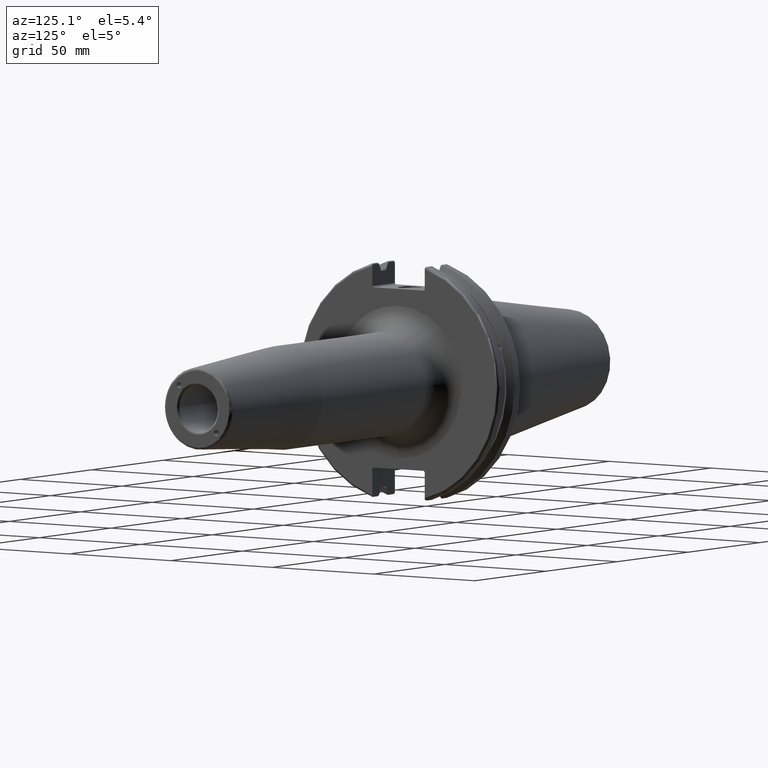
[diagram: clean part render]
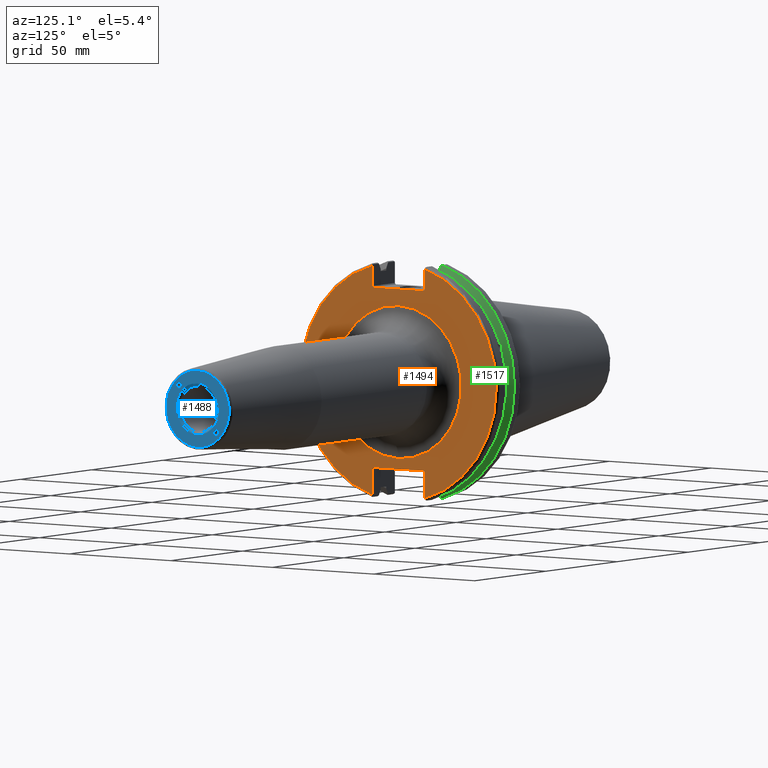
[diagram: same view with three faces highlighted in distinct colors, each labeled with its STEP entity id]
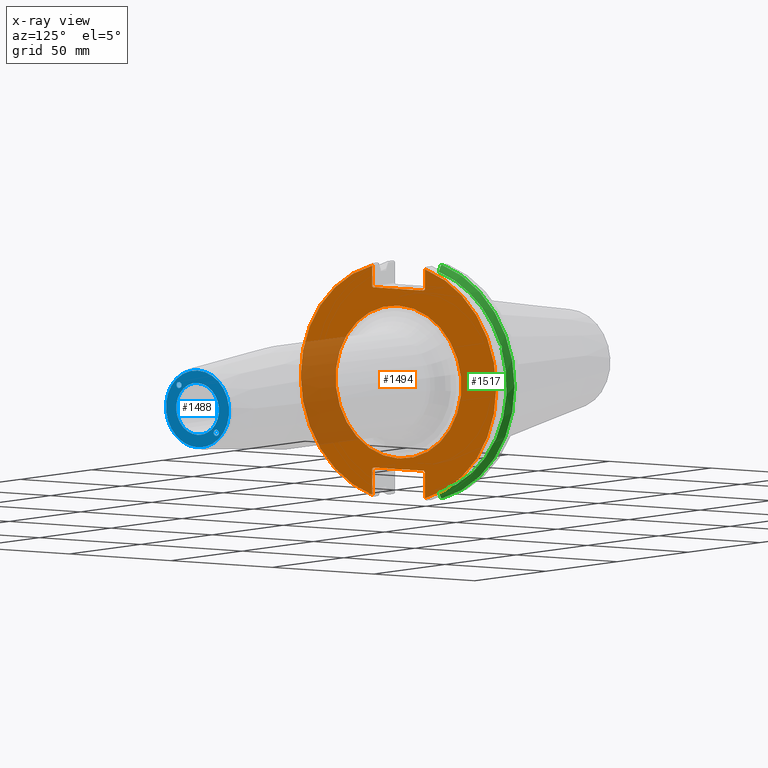
[diagram: x-ray of the same camera — body ghosted, the three highlighted faces saturated]
A machine part, auxiliary view with three faces highlighted in distinct colors.
The next image is the same camera in x-ray (body ghosted, the three faces saturated) — at least one of them is partly hidden behind the body in this view.
Their STEP definitions:

[orange] entity #1494 — the highlighted planar face has unit normal (1, 0, 0).
#72=FACE_BOUND('',#272,.T.);
#92=PLANE('',#1623);
#180=FACE_OUTER_BOUND('',#271,.T.);
#271=EDGE_LOOP('',(#1061,#1062,#1063,#1064,#1065,#1066,#1067,#1068,#1069,
#1070,#1071,#1072));
#272=EDGE_LOOP('',(#1073));
#374=LINE('',#2253,#468);
#375=LINE('',#2255,#469);
#376=LINE('',#2257,#470);
#377=LINE('',#2259,#471);
#378=LINE('',#2261,#472);
#379=LINE('',#2265,#473);
#380=LINE('',#2267,#474);
#381=LINE('',#2269,#475);
#382=LINE('',#2271,#476);
#383=LINE('',#2272,#477);
#468=VECTOR('',#1833,10.);
#469=VECTOR('',#1834,10.);
#470=VECTOR('',#1835,10.);
#471=VECTOR('',#1836,10.);
#472=VECTOR('',#1837,10.);
#473=VECTOR('',#1840,10.);
#474=VECTOR('',#1841,10.);
#475=VECTOR('',#1842,10.);
#476=VECTOR('',#1843,10.);
#477=VECTOR('',#1844,10.);
#569=CIRCLE('',#1620,31.);
#571=CIRCLE('',#1624,48.2125);
#572=CIRCLE('',#1625,48.2125);
#647=VERTEX_POINT('',#2242);
#648=VERTEX_POINT('',#2249);
#649=VERTEX_POINT('',#2250);
#650=VERTEX_POINT('',#2252);
#651=VERTEX_POINT('',#2254);
#652=VERTEX_POINT('',#2256);
#653=VERTEX_POINT('',#2258);
#654=VERTEX_POINT('',#2260);
#655=VERTEX_POINT('',#2262);
#656=VERTEX_POINT('',#2264);
#657=VERTEX_POINT('',#2266);
#658=VERTEX_POINT('',#2268);
#659=VERTEX_POINT('',#2270);
#807=EDGE_CURVE('',#647,#647,#569,.T.);
#810=EDGE_CURVE('',#648,#649,#571,.T.);
#811=EDGE_CURVE('',#648,#650,#374,.T.);
#812=EDGE_CURVE('',#651,#650,#375,.T.);
#813=EDGE_CURVE('',#651,#652,#376,.T.);
#814=EDGE_CURVE('',#653,#652,#377,.T.);
#815=EDGE_CURVE('',#653,#654,#378,.T.);
#816=EDGE_CURVE('',#655,#654,#572,.T.);
#817=EDGE_CURVE('',#655,#656,#379,.T.);
#818=EDGE_CURVE('',#657,#656,#380,.T.);
#819=EDGE_CURVE('',#657,#658,#381,.T.);
#820=EDGE_CURVE('',#659,#658,#382,.T.);
#821=EDGE_CURVE('',#659,#649,#383,.T.);
#1061=ORIENTED_EDGE('',*,*,#810,.F.);
#1062=ORIENTED_EDGE('',*,*,#811,.T.);
#1063=ORIENTED_EDGE('',*,*,#812,.F.);
#1064=ORIENTED_EDGE('',*,*,#813,.T.);
#1065=ORIENTED_EDGE('',*,*,#814,.F.);
#1066=ORIENTED_EDGE('',*,*,#815,.T.);
#1067=ORIENTED_EDGE('',*,*,#816,.F.);
#1068=ORIENTED_EDGE('',*,*,#817,.T.);
#1069=ORIENTED_EDGE('',*,*,#818,.F.);
#1070=ORIENTED_EDGE('',*,*,#819,.T.);
#1071=ORIENTED_EDGE('',*,*,#820,.F.);
#1072=ORIENTED_EDGE('',*,*,#821,.T.);
#1073=ORIENTED_EDGE('',*,*,#807,.F.);
#1494=ADVANCED_FACE('',(#180,#72),#92,.T.);
#1620=AXIS2_PLACEMENT_3D('',#2244,#1822,#1823);
#1623=AXIS2_PLACEMENT_3D('',#2248,#1829,#1830);
#1624=AXIS2_PLACEMENT_3D('',#2251,#1831,#1832);
#1625=AXIS2_PLACEMENT_3D('',#2263,#1838,#1839);
#1822=DIRECTION('center_axis',(1.,0.,0.));
#1823=DIRECTION('ref_axis',(0.,-1.,-1.22464679914735E-16));
#1829=DIRECTION('center_axis',(1.,0.,0.));
#1830=DIRECTION('ref_axis',(0.,0.,-1.));
#1831=DIRECTION('center_axis',(-1.,0.,0.));
#1832=DIRECTION('ref_axis',(0.,1.,-6.12323399573677E-17));
#1833=DIRECTION('',(0.,0.,-1.));
#1834=DIRECTION('',(0.,0.707106781186549,0.707106781186546));
#1835=DIRECTION('',(0.,-1.,0.));
#1836=DIRECTION('',(0.,0.707106781186549,-0.707106781186546));
#1837=DIRECTION('',(0.,0.,1.));
#1838=DIRECTION('center_axis',(-1.,0.,0.));
#1839=DIRECTION('ref_axis',(0.,-1.,1.60812264967664E-16));
#1840=DIRECTION('',(0.,0.,1.));
#1841=DIRECTION('',(0.,-0.707106781186549,-0.707106781186546));
#1842=DIRECTION('',(0.,1.,0.));
#1843=DIRECTION('',(0.,-0.707106781186549,0.707106781186546));
#1844=DIRECTION('',(0.,0.,-1.));
#2242=CARTESIAN_POINT('',(19.05,-3.7964050773568E-15,-31.));
#2244=CARTESIAN_POINT('Origin',(19.05,0.,0.));
#2248=CARTESIAN_POINT('Origin',(19.05,0.,0.));
#2249=CARTESIAN_POINT('',(19.05,12.95,46.4407434937254));
#2250=CARTESIAN_POINT('',(19.05,12.95,-46.4407434937254));
#2251=CARTESIAN_POINT('Origin',(19.05,0.,0.));
#2252=CARTESIAN_POINT('',(19.05,12.95,38.219));
#2253=CARTESIAN_POINT('',(19.05,12.95,18.8595));
#2254=CARTESIAN_POINT('',(19.05,12.45,37.719));
#2255=CARTESIAN_POINT('',(19.05,0.0327499999999836,25.30175));
#2256=CARTESIAN_POINT('',(19.05,-12.45,37.719));
#2257=CARTESIAN_POINT('',(19.05,0.,37.719));
#2258=CARTESIAN_POINT('',(19.05,-12.95,38.219));
#2259=CARTESIAN_POINT('',(19.05,-0.0327499999999817,25.30175));
#2260=CARTESIAN_POINT('',(19.05,-12.95,46.4407434937254));
#2261=CARTESIAN_POINT('',(19.05,-12.95,18.8595));
#2262=CARTESIAN_POINT('',(19.05,-12.95,-46.4407434937254));
#2263=CARTESIAN_POINT('Origin',(19.05,0.,0.));
#2264=CARTESIAN_POINT('',(19.05,-12.95,-35.806));
#2265=CARTESIAN_POINT('',(19.05,-12.95,-17.653));
#2266=CARTESIAN_POINT('',(19.05,-12.45,-35.306));
#2267=CARTESIAN_POINT('',(19.05,-0.635999999999989,-23.492));
#2268=CARTESIAN_POINT('',(19.05,12.45,-35.306));
#2269=CARTESIAN_POINT('',(19.05,-3.33066907387547E-15,-35.306));
#2270=CARTESIAN_POINT('',(19.05,12.95,-35.806));
#2271=CARTESIAN_POINT('',(19.05,0.635999999999982,-23.492));
#2272=CARTESIAN_POINT('',(19.05,12.95,-17.653));

[blue] entity #1488 — the highlighted planar face has unit normal (1, 0, 0).
#69=FACE_BOUND('',#263,.T.);
#70=FACE_BOUND('',#264,.T.);
#71=FACE_BOUND('',#265,.T.);
#91=PLANE('',#1607);
#137=ELLIPSE('',#1597,1.25076193037353,1.25);
#138=ELLIPSE('',#1601,1.25076193037353,1.25);
#174=FACE_OUTER_BOUND('',#262,.T.);
#262=EDGE_LOOP('',(#1032));
#263=EDGE_LOOP('',(#1033));
#264=EDGE_LOOP('',(#1034));
#265=EDGE_LOOP('',(#1035));
#560=CIRCLE('',#1606,10.525);
#561=CIRCLE('',#1608,15.5756095083418);
#633=VERTEX_POINT('',#2201);
#636=VERTEX_POINT('',#2210);
#639=VERTEX_POINT('',#2218);
#640=VERTEX_POINT('',#2222);
#787=EDGE_CURVE('',#633,#633,#137,.T.);
#791=EDGE_CURVE('',#636,#636,#138,.T.);
#796=EDGE_CURVE('',#639,#639,#560,.T.);
#797=EDGE_CURVE('',#640,#640,#561,.T.);
#1032=ORIENTED_EDGE('',*,*,#797,.F.);
#1033=ORIENTED_EDGE('',*,*,#787,.T.);
#1034=ORIENTED_EDGE('',*,*,#791,.T.);
#1035=ORIENTED_EDGE('',*,*,#796,.F.);
#1488=ADVANCED_FACE('',(#174,#69,#70,#71),#91,.T.);
#1597=AXIS2_PLACEMENT_3D('',#2202,#1771,#1772);
#1601=AXIS2_PLACEMENT_3D('',#2211,#1781,#1782);
#1606=AXIS2_PLACEMENT_3D('',#2220,#1792,#1793);
#1607=AXIS2_PLACEMENT_3D('',#2221,#1794,#1795);
#1608=AXIS2_PLACEMENT_3D('',#2223,#1796,#1797);
#1771=DIRECTION('center_axis',(-1.,0.,0.));
#1772=DIRECTION('ref_axis',(0.,0.707106781186413,-0.707106781186682));
#1781=DIRECTION('center_axis',(-1.,0.,0.));
#1782=DIRECTION('ref_axis',(0.,-0.707106781186413,0.707106781186682));
#1792=DIRECTION('center_axis',(1.,0.,0.));
#1793=DIRECTION('ref_axis',(0.,-1.,1.83697019872103E-16));
#1794=DIRECTION('center_axis',(1.,0.,0.));
#1795=DIRECTION('ref_axis',(0.,0.,-1.));
#1796=DIRECTION('center_axis',(-1.,0.,0.));
#1797=DIRECTION('ref_axis',(0.,-1.,1.83697019872103E-16));
#2201=CARTESIAN_POINT('',(160.,-10.442769178648,9.19315008576328));
#2202=CARTESIAN_POINT('Origin',(160.,-9.19238815542512,9.19238815542512));
#2210=CARTESIAN_POINT('',(160.,10.442769178648,-9.19315008576328));
#2211=CARTESIAN_POINT('Origin',(160.,9.19238815542512,-9.19238815542512));
#2218=CARTESIAN_POINT('',(160.,-1.28894075610259E-15,10.525));
#2220=CARTESIAN_POINT('Origin',(160.,0.,0.));
#2221=CARTESIAN_POINT('Origin',(160.,9.52500000000001,0.));
#2222=CARTESIAN_POINT('',(160.,-1.90746203291599E-15,15.5756095083418));
#2223=CARTESIAN_POINT('Origin',(160.,0.,0.));

[green] entity #1517 — the highlighted conical surface has half-angle 60 deg.
#19=(
BOUNDED_CURVE()
B_SPLINE_CURVE(2,(#2777,#2778,#2779),.UNSPECIFIED.,.F.,.F.)
B_SPLINE_CURVE_WITH_KNOTS((3,3),(0.,0.275823910674652),.UNSPECIFIED.)
CURVE()
GEOMETRIC_REPRESENTATION_ITEM()
RATIONAL_B_SPLINE_CURVE((1.,1.00038235573731,1.00012873636533))
REPRESENTATION_ITEM('')
);
#20=(
BOUNDED_CURVE()
B_SPLINE_CURVE(2,(#2781,#2782,#2783),.UNSPECIFIED.,.F.,.F.)
B_SPLINE_CURVE_WITH_KNOTS((3,3),(0.,0.0648240472898323),.UNSPECIFIED.)
CURVE()
GEOMETRIC_REPRESENTATION_ITEM()
RATIONAL_B_SPLINE_CURVE((1.,1.00011477674853,1.00019140645976))
REPRESENTATION_ITEM('')
);
#21=(
BOUNDED_CURVE()
B_SPLINE_CURVE(2,(#2787,#2788,#2789),.UNSPECIFIED.,.F.,.F.)
B_SPLINE_CURVE_WITH_KNOTS((3,3),(0.325260944932483,0.390084992222205),
 .UNSPECIFIED.)
CURVE()
GEOMETRIC_REPRESENTATION_ITEM()
RATIONAL_B_SPLINE_CURVE((1.00019140645955,1.00011477674841,1.))
REPRESENTATION_ITEM('')
);
#22=(
BOUNDED_CURVE()
B_SPLINE_CURVE(2,(#2791,#2792,#2793),.UNSPECIFIED.,.F.,.F.)
B_SPLINE_CURVE_WITH_KNOTS((3,3),(0.0558332664491378,0.331657177124507),
 .UNSPECIFIED.)
CURVE()
GEOMETRIC_REPRESENTATION_ITEM()
RATIONAL_B_SPLINE_CURVE((1.00012873637135,1.00038235575519,1.))
REPRESENTATION_ITEM('')
);
#50=B_SPLINE_CURVE_WITH_KNOTS('',3,(#2730,#2731,#2732,#2733,#2734,#2735,
#2736,#2737,#2738,#2739,#2740,#2741,#2742,#2743),.UNSPECIFIED.,.F.,.F.,
(4,2,2,2,2,2,4),(0.426712868358718,0.441644498666905,0.480313313223129,
0.518982127779353,0.557650942335577,0.596319756891801,0.611251387199986),
 .UNSPECIFIED.);
#203=FACE_OUTER_BOUND('',#304,.T.);
#304=EDGE_LOOP('',(#1188,#1189,#1190,#1191,#1192,#1193,#1194,#1195));
#593=CIRCLE('',#1670,46.4219772964944);
#594=CIRCLE('',#1671,49.2125);
#595=CIRCLE('',#1672,46.4219772964944);
#710=VERTEX_POINT('',#2727);
#711=VERTEX_POINT('',#2729);
#715=VERTEX_POINT('',#2774);
#716=VERTEX_POINT('',#2776);
#717=VERTEX_POINT('',#2780);
#718=VERTEX_POINT('',#2784);
#719=VERTEX_POINT('',#2786);
#720=VERTEX_POINT('',#2790);
#888=EDGE_CURVE('',#711,#710,#50,.T.);
#893=EDGE_CURVE('',#715,#710,#593,.T.);
#894=EDGE_CURVE('',#715,#716,#19,.T.);
#895=EDGE_CURVE('',#717,#716,#20,.T.);
#896=EDGE_CURVE('',#717,#718,#594,.T.);
#897=EDGE_CURVE('',#719,#718,#21,.T.);
#898=EDGE_CURVE('',#719,#720,#22,.T.);
#899=EDGE_CURVE('',#711,#720,#595,.T.);
#1188=ORIENTED_EDGE('',*,*,#888,.T.);
#1189=ORIENTED_EDGE('',*,*,#893,.F.);
#1190=ORIENTED_EDGE('',*,*,#894,.T.);
#1191=ORIENTED_EDGE('',*,*,#895,.F.);
#1192=ORIENTED_EDGE('',*,*,#896,.T.);
#1193=ORIENTED_EDGE('',*,*,#897,.F.);
#1194=ORIENTED_EDGE('',*,*,#898,.T.);
#1195=ORIENTED_EDGE('',*,*,#899,.F.);
#1475=CONICAL_SURFACE('',#1669,47.8172386482472,1.0471975511966);
#1517=ADVANCED_FACE('',(#203),#1475,.T.);
#1669=AXIS2_PLACEMENT_3D('',#2773,#1955,#1956);
#1670=AXIS2_PLACEMENT_3D('',#2775,#1957,#1958);
#1671=AXIS2_PLACEMENT_3D('',#2785,#1959,#1960);
#1672=AXIS2_PLACEMENT_3D('',#2794,#1961,#1962);
#1955=DIRECTION('center_axis',(-1.,0.,0.));
#1956=DIRECTION('ref_axis',(0.,1.,0.));
#1957=DIRECTION('center_axis',(1.,0.,0.));
#1958=DIRECTION('ref_axis',(0.,0.,-1.));
#1959=DIRECTION('center_axis',(1.,0.,0.));
#1960=DIRECTION('ref_axis',(0.,0.,-1.));
#1961=DIRECTION('center_axis',(1.,0.,0.));
#1962=DIRECTION('ref_axis',(0.,0.,-1.));
#2727=CARTESIAN_POINT('',(9.2191,43.9096390749305,15.0646464421033));
#2729=CARTESIAN_POINT('',(9.2191,43.3201030900029,16.684383248648));
#2730=CARTESIAN_POINT('Ctrl Pts',(9.21910000000001,43.3201030900029,16.6843832486479));
#2731=CARTESIAN_POINT('Ctrl Pts',(9.20211843903392,43.3613106941341,16.6592273018006));
#2732=CARTESIAN_POINT('Ctrl Pts',(9.18608675403323,43.4012416983557,16.6326763251437));
#2733=CARTESIAN_POINT('Ctrl Pts',(9.13238673845037,43.539103734322,16.5325130832406));
#2734=CARTESIAN_POINT('Ctrl Pts',(9.09621610663555,43.6406982153491,16.441180795372));
#2735=CARTESIAN_POINT('Ctrl Pts',(9.04690868251975,43.8110833825827,16.2291323464527));
#2736=CARTESIAN_POINT('Ctrl Pts',(9.0341,43.8794096049168,16.10796730316));
#2737=CARTESIAN_POINT('Ctrl Pts',(9.0341,43.9675796948952,15.8657219718732));
#2738=CARTESIAN_POINT('Ctrl Pts',(9.04690868251975,43.9931221605126,15.7289849146254));
#2739=CARTESIAN_POINT('Ctrl Pts',(9.09621610663555,43.9989016655819,15.4570249042868));
#2740=CARTESIAN_POINT('Ctrl Pts',(9.13238673845037,43.9797830409458,15.3217566390708));
#2741=CARTESIAN_POINT('Ctrl Pts',(9.18608675403322,43.9385582852181,15.1564111356409));
#2742=CARTESIAN_POINT('Ctrl Pts',(9.20211843903391,43.9250360001461,15.1104047527575));
#2743=CARTESIAN_POINT('Ctrl Pts',(9.2191,43.9096390749305,15.0646464421033));
#2773=CARTESIAN_POINT('Origin',(8.41354548297563,0.,0.));
#2774=CARTESIAN_POINT('',(9.2191,12.95,-44.5791147973604));
#2775=CARTESIAN_POINT('Origin',(9.2191,0.,0.));
#2776=CARTESIAN_POINT('',(7.88638960562424,12.95,-46.9780755322918));
#2777=CARTESIAN_POINT('Ctrl Pts',(9.2191,12.95,-44.5791147973604));
#2778=CARTESIAN_POINT('Ctrl Pts',(8.57020449055827,12.95,-45.7494966802153));
#2779=CARTESIAN_POINT('Ctrl Pts',(7.88638960562424,12.95,-46.9780755322918));
#2780=CARTESIAN_POINT('',(7.60799096595127,13.4317035994433,-47.3440544806494));
#2781=CARTESIAN_POINT('Ctrl Pts',(7.60799096595127,13.4317035994433,-47.3440544806494));
#2782=CARTESIAN_POINT('Ctrl Pts',(7.74826896663818,13.1896660169966,-47.1601640966265));
#2783=CARTESIAN_POINT('Ctrl Pts',(7.88638960562424,12.95,-46.9780755322918));
#2784=CARTESIAN_POINT('',(7.60799096595127,13.4317035994433,47.3440544806494));
#2785=CARTESIAN_POINT('Origin',(7.60799096595127,0.,0.));
#2786=CARTESIAN_POINT('',(7.88638960562424,12.95,46.9780755322918));
#2787=CARTESIAN_POINT('Ctrl Pts',(7.88638960562424,12.95,46.9780755322917));
#2788=CARTESIAN_POINT('Ctrl Pts',(7.74826896663821,13.1896660169966,47.1601640966264));
#2789=CARTESIAN_POINT('Ctrl Pts',(7.60799096595127,13.4317035994433,47.3440544806494));
#2790=CARTESIAN_POINT('',(9.2191,12.95,44.5791147973604));
#2791=CARTESIAN_POINT('Ctrl Pts',(7.88638960562424,12.95,46.9780755322918));
#2792=CARTESIAN_POINT('Ctrl Pts',(8.57020449055492,12.95,45.7494966802213));
#2793=CARTESIAN_POINT('Ctrl Pts',(9.2191,12.95,44.5791147973604));
#2794=CARTESIAN_POINT('Origin',(9.2191,0.,0.));